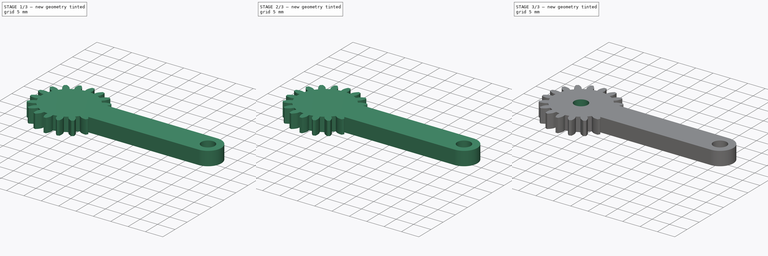
[diagram: build sequence overview — one tinted view per stage of 3, left to right]
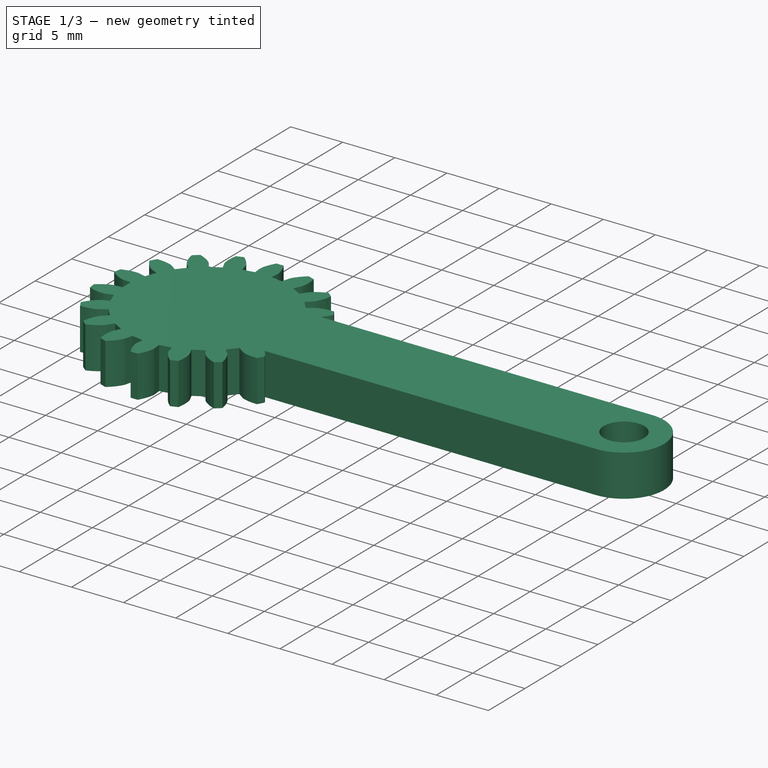
[diagram: stage 1 of 3 — iso view after this stage's code; geometry added in this stage tinted green]
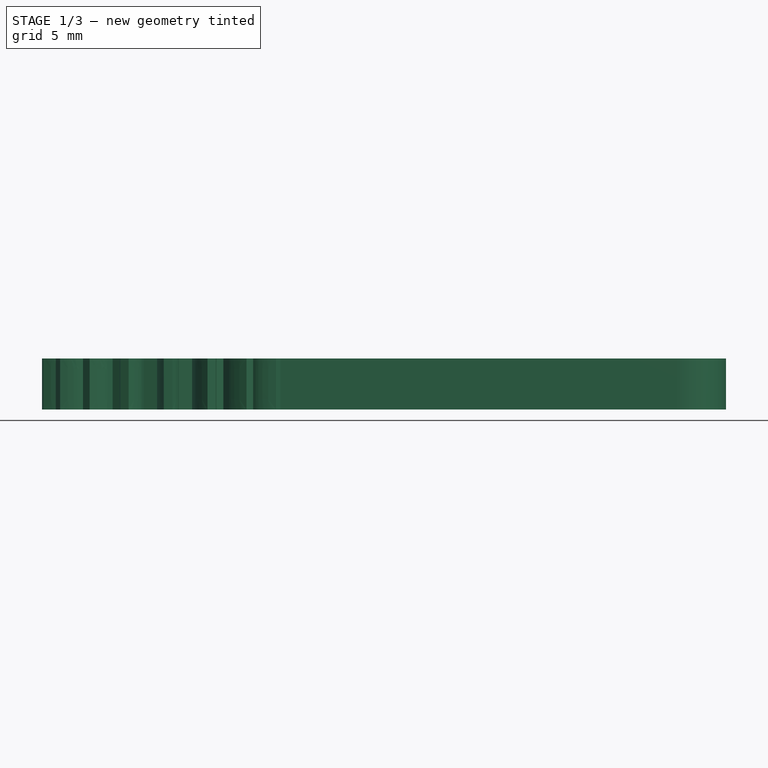
[diagram: stage 1 of 3 — front view after this stage's code; geometry added in this stage tinted green]
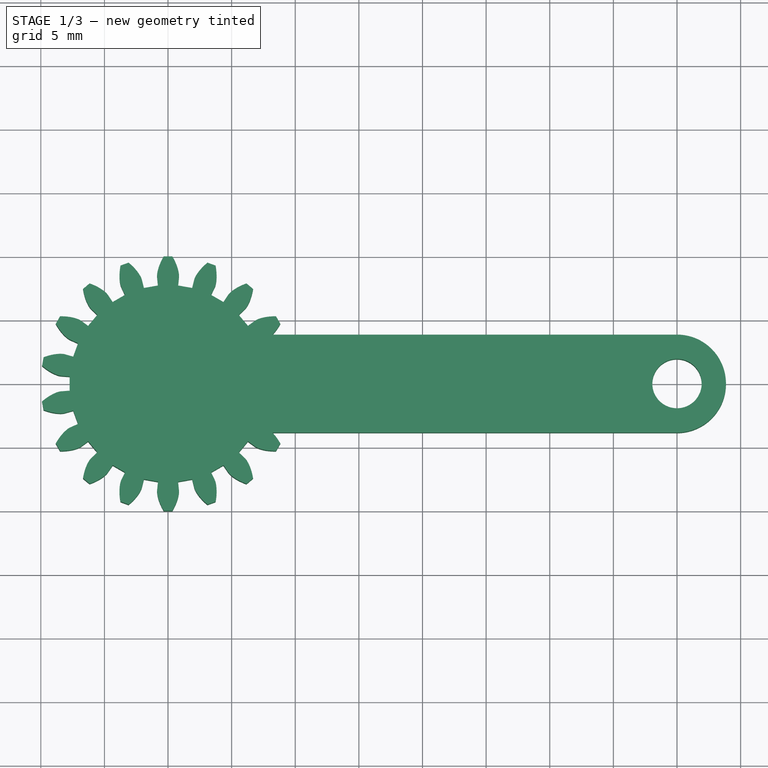
[diagram: stage 1 of 3 — top view after this stage's code; geometry added in this stage tinted green]
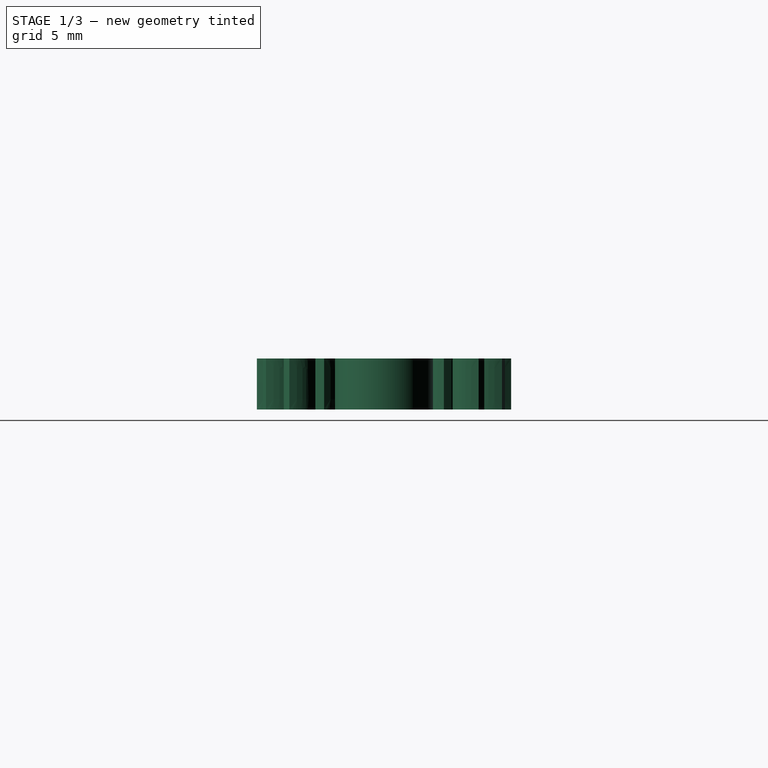
[diagram: stage 1 of 3 — right view after this stage's code; geometry added in this stage tinted green]
FCSTD DOCUMENT  (FreeCAD 0.20R29410 (Git))
Label: Eslabon2.1
License: All rights reserved
LicenseURL: http://en.wikipedia.org/wiki/All_rights_reserved
objects: Sketcher::SketchObject×2, Part::Extrusion×2, Part::FeaturePython×1, Part::MultiFuse×1, Part::Cut×1
note: 7 computed .brp shape members not serialized (recipe doc carries the construction recipe); baked Part::Feature solids carry a one-line shape summary decoded from their .brp

FEATURE [Sketcher::SketchObject] Sketch  label="Eslabon 40x7.7mm"
  FullyConstrained = true
  sketch-geometry (6):
    g0: LineSegment StartX=2e-16 StartY=3.85 StartZ=0 EndX=40 EndY=3.85 EndZ=0
    g1: LineSegment StartX=0 StartY=-3.85 StartZ=0 EndX=40 EndY=-3.85 EndZ=0
    g2: ArcOfCircle CenterX=0 CenterY=0 CenterZ=0 NormalX=0 NormalY=0 NormalZ=1 AngleXU=0 Radius=3.85 StartAngle=1.5708 EndAngle=4.71239
    g3: ArcOfCircle CenterX=40 CenterY=-9.9e-15 CenterZ=0 NormalX=0 NormalY=0 NormalZ=1 AngleXU=0 Radius=3.85 StartAngle=4.71239 EndAngle=7.85398
    g4: Circle CenterX=40 CenterY=-9.9e-15 CenterZ=0 NormalX=0 NormalY=0 NormalZ=1 AngleXU=0 Radius=1.94
    g5: Circle CenterX=0 CenterY=0 CenterZ=0 NormalX=0 NormalY=0 NormalZ=1 AngleXU=0 Radius=1.94
  constraints (18):
    c: PointOnObject(g0,g-2)
    c: PointOnObject(g1,g-2)
    c: Horizontal(g0)
    c: Horizontal(g1)
    c: Equal(g0,g1)
    c: Distance(g0) = 40
    c: DistanceY(g1,g0) = 7.7
    c: Coincident(g2,g-1)
    c: Coincident(g2,g0)
    c: PointOnObject(g2,g-2)
    c: Coincident(g3,g0)
    c: Coincident(g3,g1)
    c: Radius(g3) = 3.85
    c: Coincident(g4,g3)
    c: Coincident(g5,g2)
    c: Equal(g5,g4)
    c: Radius(g5) = 1.94
    c: Equal(g2,g3)
FEATURE [Part::Extrusion] Extrude  label="Extrusion 4mm"
  Base = -> Sketch
  Dir = (0,0,1)
  DirMode = 2
  FaceMakerClass = Part::FaceMakerBullseye
  LengthFwd = 4
  LengthRev = 0
  Solid = true
  Symmetric = false
FEATURE [Part::FeaturePython] InvoluteGear  label="Engranaje 18dientes"  # WARN: FeaturePython — macro-defined, semantics opaque (R4)
  AttacherType = Attacher::AttachEngine3D
  Placement = pos=(0,0,0) rot=(0,0,-1;0.174533rad)
  angular_backlash = 0
  backlash = 0
  beta = 0
  clearance = 0.25
  da = 20
  df = 15.5
  double_helix = false
  dw = 18
  head = 0
  head_fillet = 0
  height = 4
  module = 1
  numpoints = 6
  pressure_angle = 20
  properties_from_tool = false
  reversed_backlash = false
  root_fillet = 0
  shift = 0
  simple = false
  teeth = 18
  transverse_pitch = 3.14159
  undercut = false
  version = 0.0.4
  expr: angular_backlash = backlash / dw * 360° / pi
  expr: dw = teeth * module
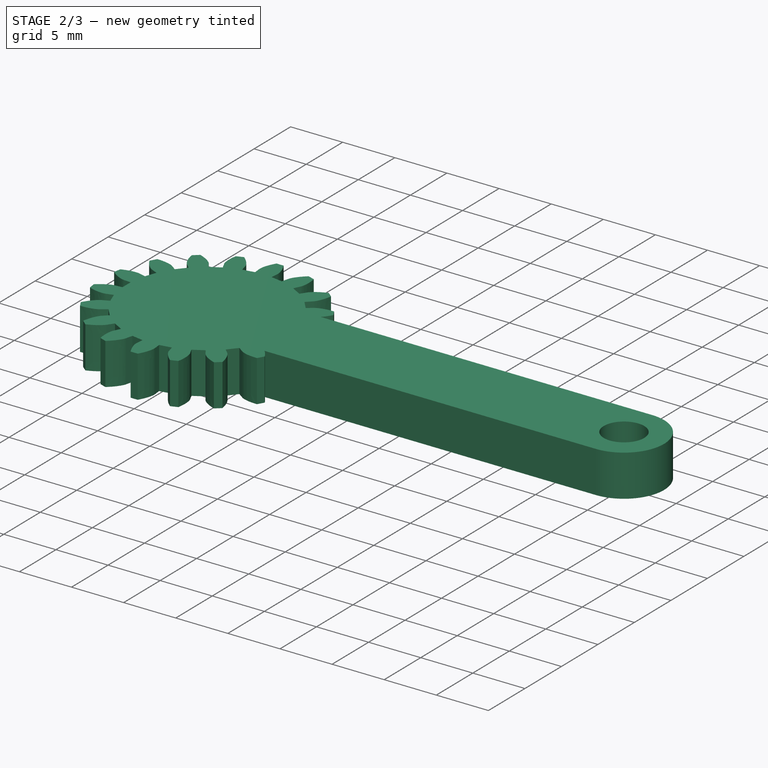
[diagram: stage 2 of 3 — iso view after this stage's code; geometry added in this stage tinted green]
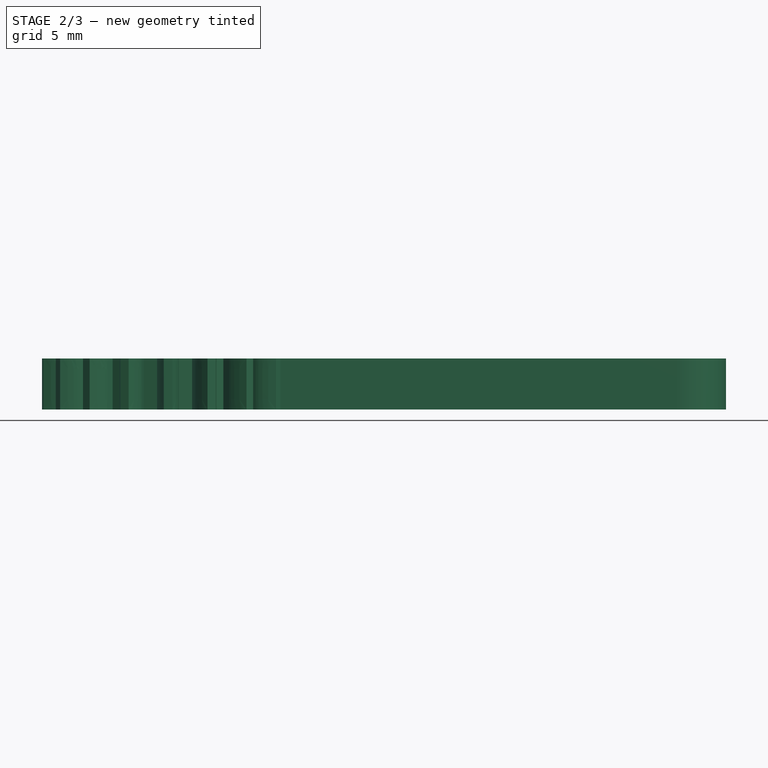
[diagram: stage 2 of 3 — front view after this stage's code; geometry added in this stage tinted green]
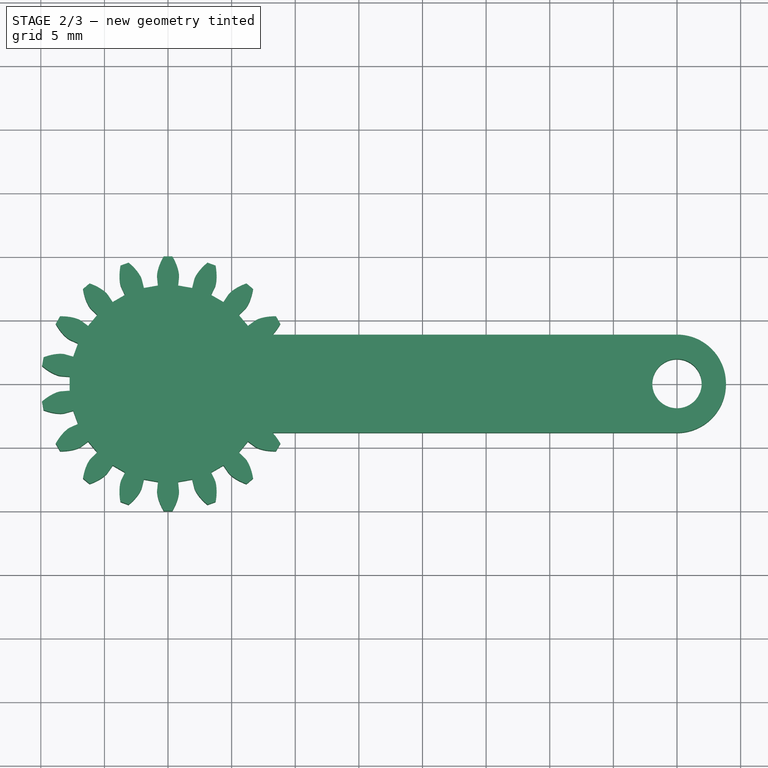
[diagram: stage 2 of 3 — top view after this stage's code; geometry added in this stage tinted green]
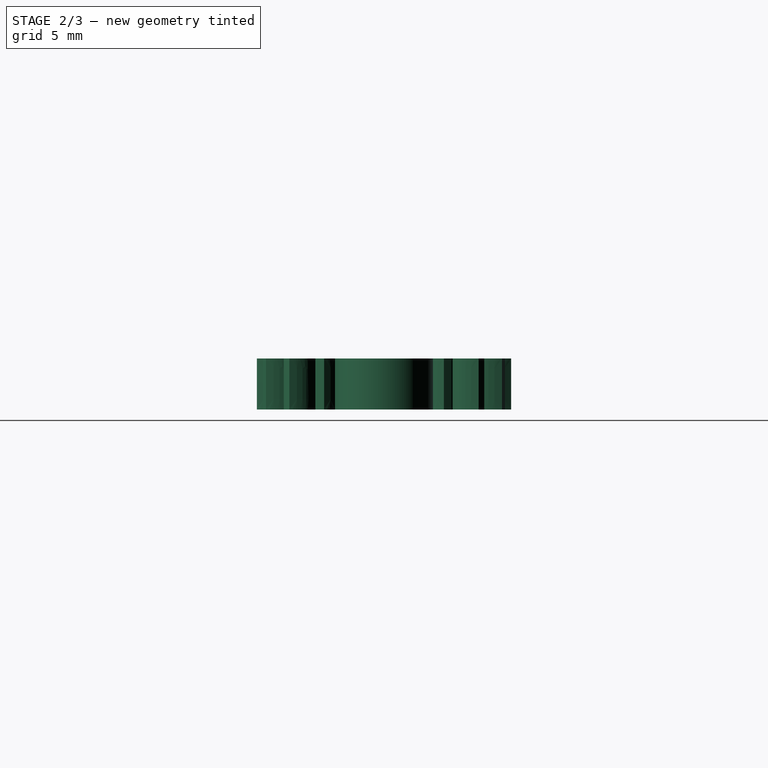
[diagram: stage 2 of 3 — right view after this stage's code; geometry added in this stage tinted green]
FEATURE [Part::MultiFuse] Fusion
  Refine = true
  Shapes = -> [Extrude,InvoluteGear]
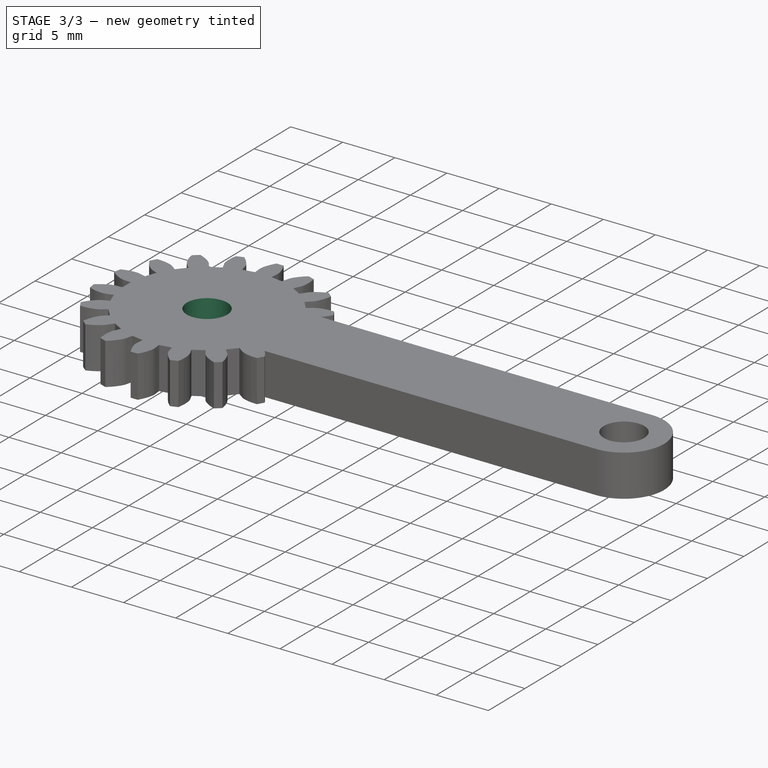
[diagram: stage 3 of 3 — iso view after this stage's code; geometry added in this stage tinted green]
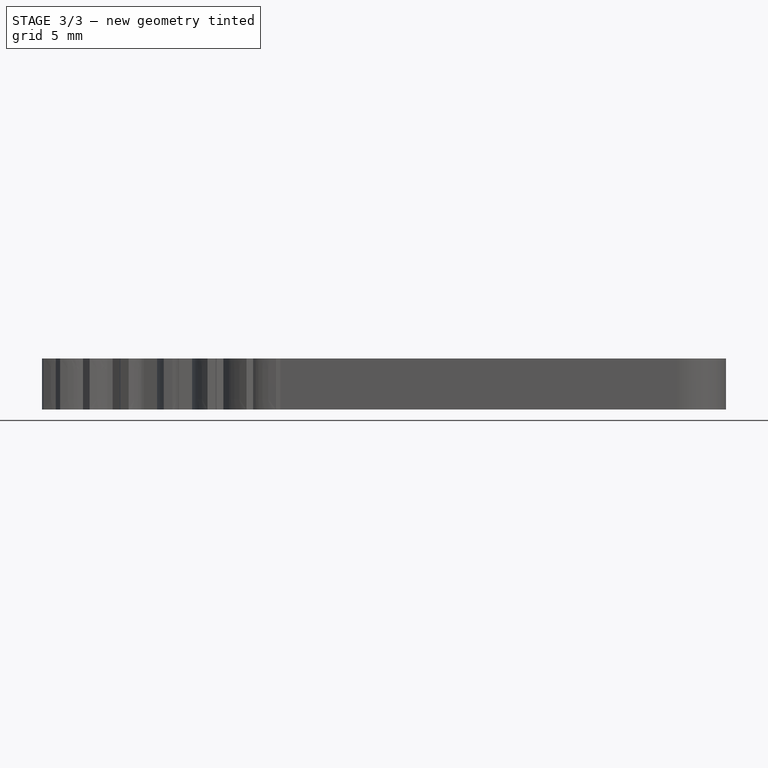
[diagram: stage 3 of 3 — front view after this stage's code; geometry added in this stage tinted green]
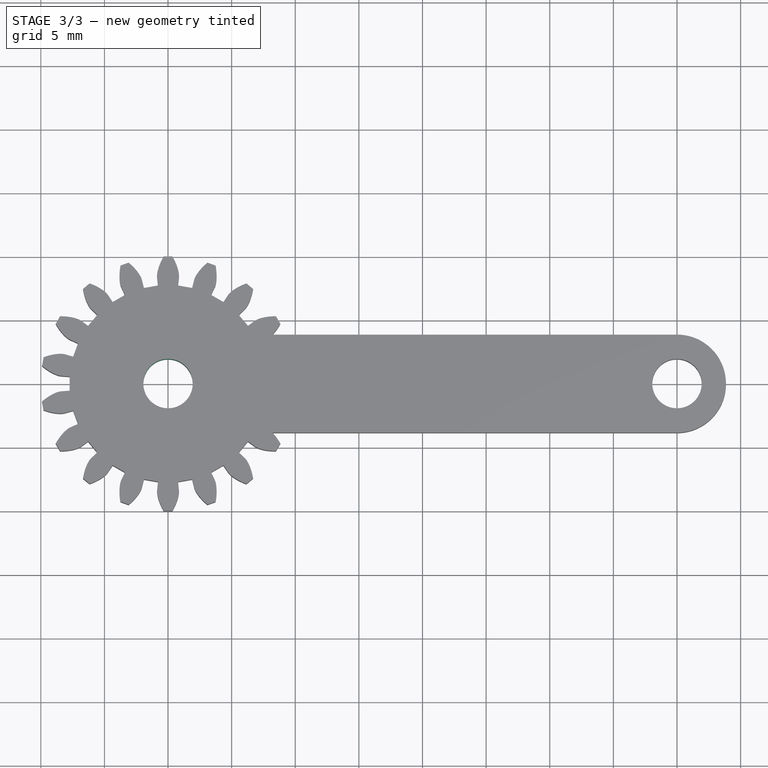
[diagram: stage 3 of 3 — top view after this stage's code; geometry added in this stage tinted green]
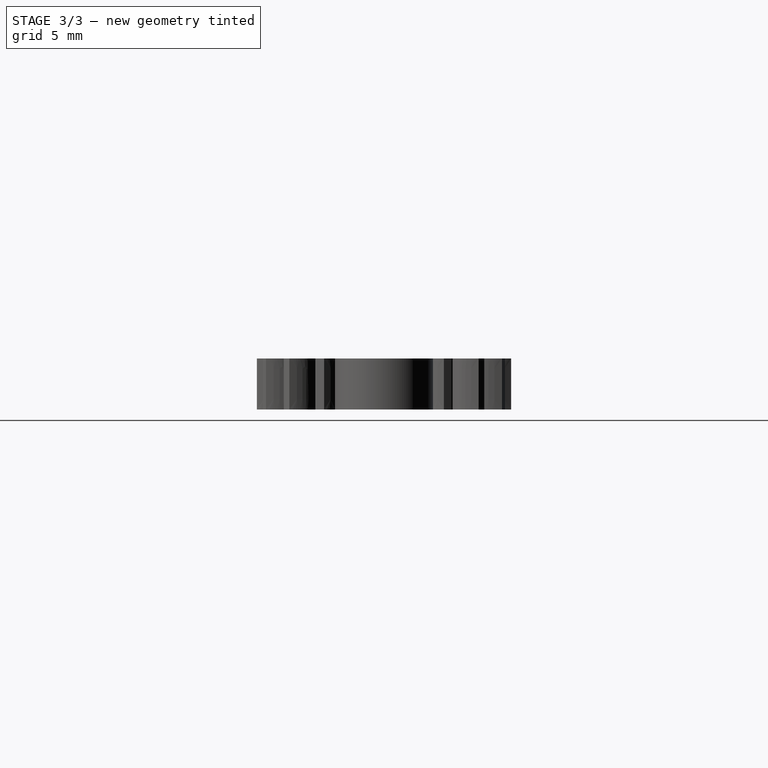
[diagram: stage 3 of 3 — right view after this stage's code; geometry added in this stage tinted green]
FEATURE [Sketcher::SketchObject] Sketch001  label="Hole r1.94mm"
  FullyConstrained = true
  MapMode = 5
  Placement = pos=(0,0,3) rot=(0,0,1;0rad)
  sketch-geometry (1):
    g0: Circle CenterX=0 CenterY=0 CenterZ=0 NormalX=0 NormalY=0 NormalZ=1 AngleXU=0 Radius=1.94
  constraints (2):
    c: Coincident(g0,g-1)
    c: Radius(g0) = 1.94
FEATURE [Part::Extrusion] Extrude001
  Base = -> Sketch001
  Dir = (0,0,1)
  DirMode = 2
  FaceMakerClass = Part::FaceMakerBullseye
  LengthFwd = 10
  LengthRev = 0
  Placement = pos=(0,0,4) rot=(0,0,1;0rad)
  Reversed = true
  Solid = true
  Symmetric = false
FEATURE [Part::Cut] Cut
  Base = -> Fusion
  Refine = true
  Tool = -> Extrude001
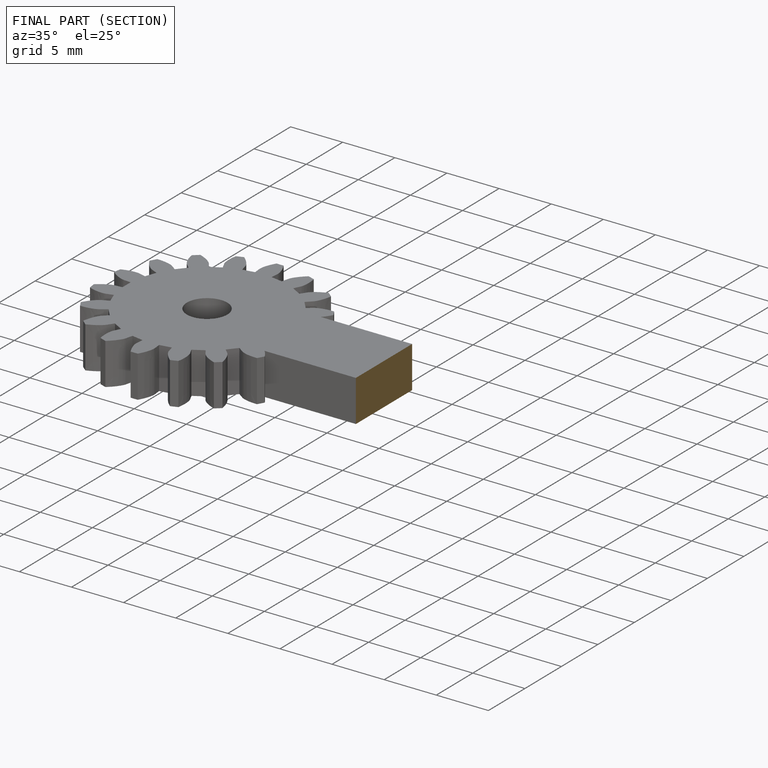
[diagram: finished part — half-section view (interior)]
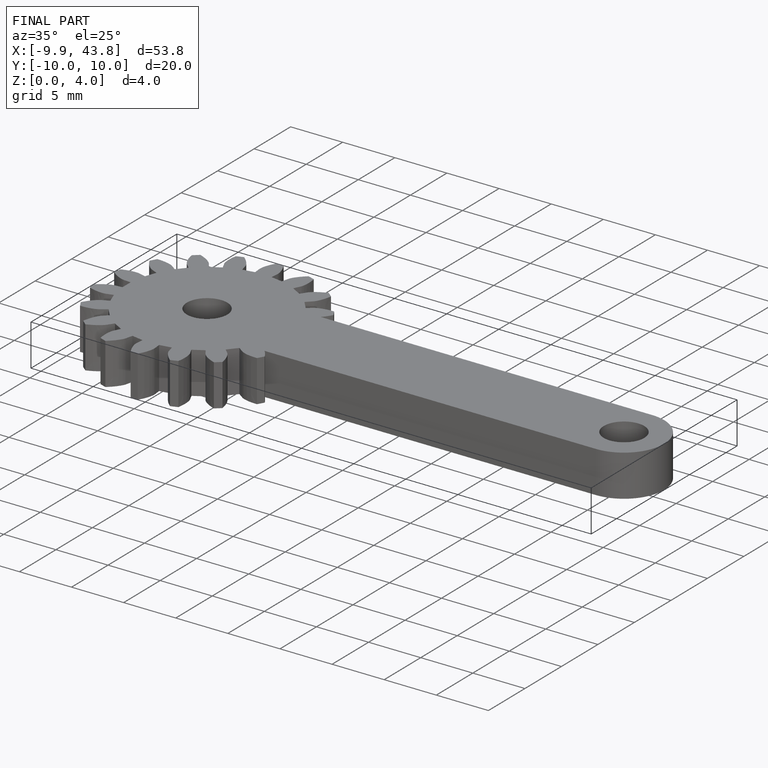
[diagram: finished part — iso view with bounding-box wireframe]
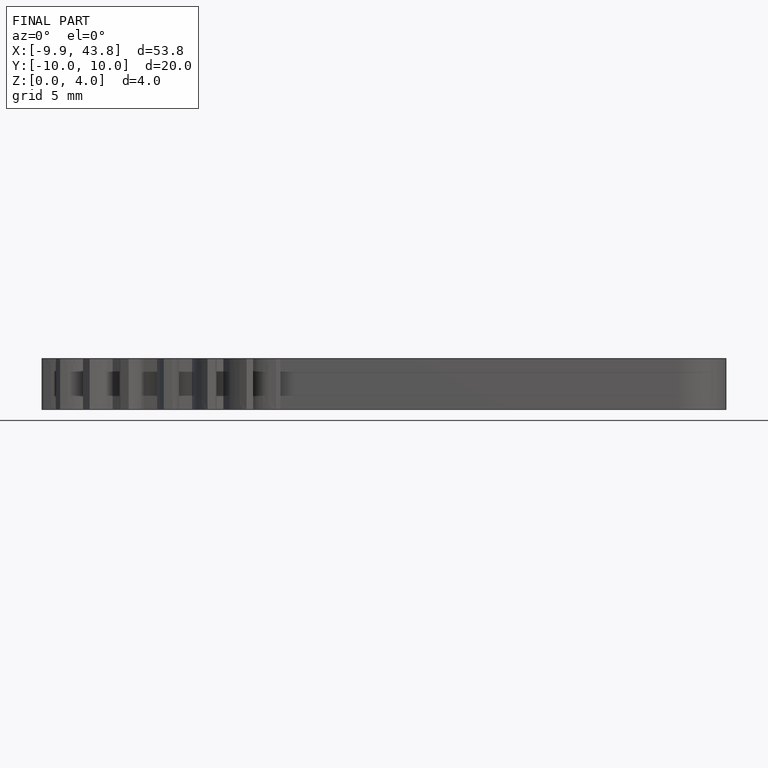
[diagram: finished part — front view with bounding-box wireframe]
